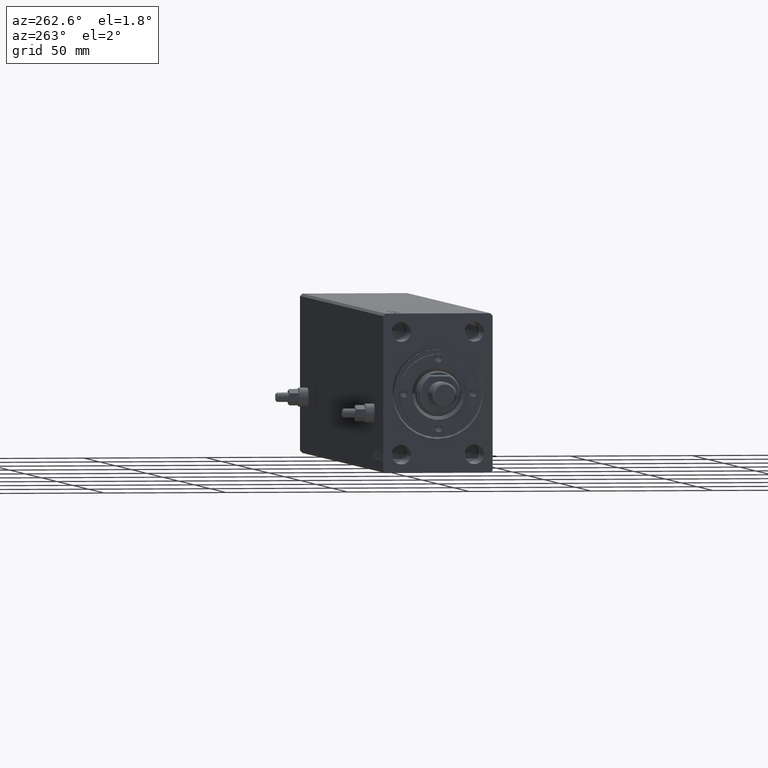
[diagram: clean part render]
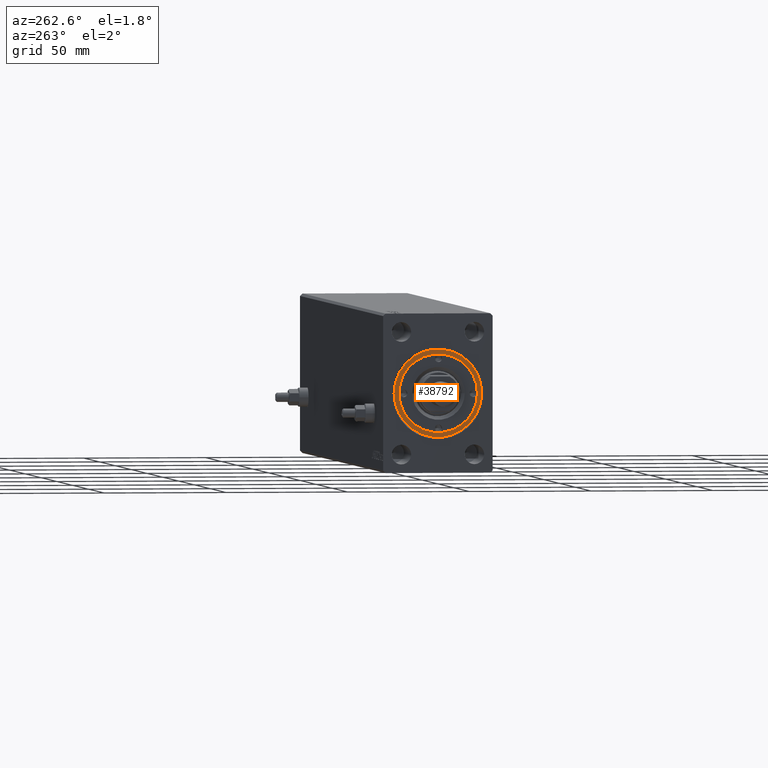
[diagram: same view with one face highlighted and labeled with its STEP entity id]
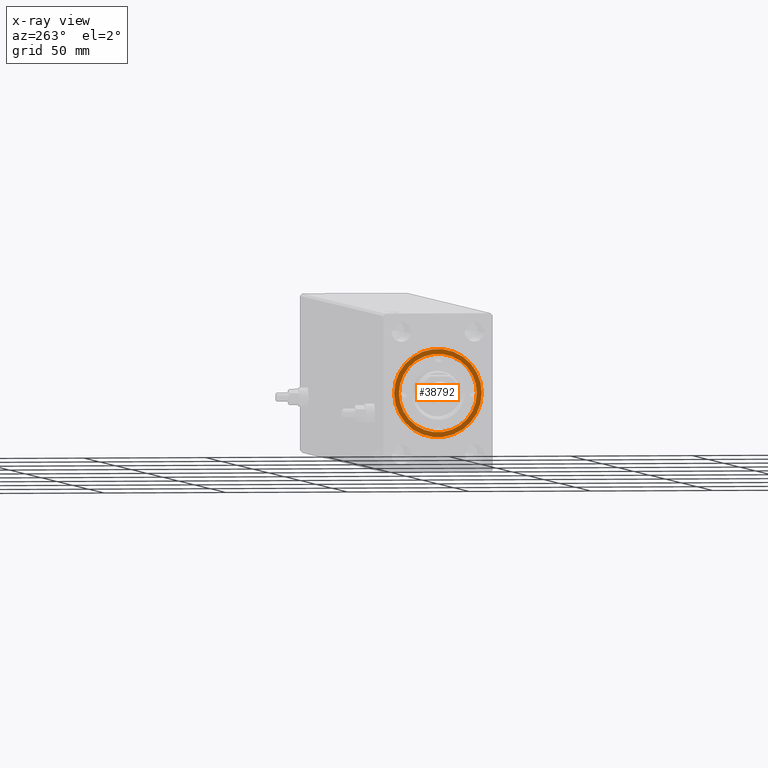
[diagram: x-ray of the same camera — body ghosted, the highlighted face saturated]
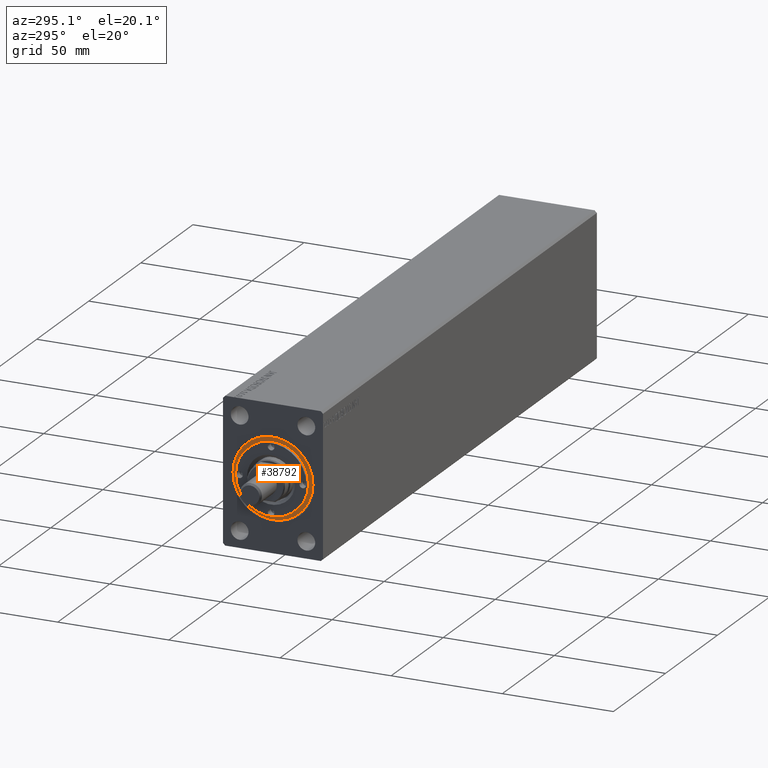
[diagram: same view with one face highlighted and labeled with its STEP entity id]
A machine part, auxiliary view. The second image highlights one B-rep face of the part: STEP entity #38792.
The next image is the same camera in x-ray: the body ghosted, the highlighted face saturated — about 0% of this face is hidden behind the body in this view.
A second angle (auxiliary view) of the same face is appended — the face is thin or edge-on in the first view.
In plain terms, the highlighted planar face has unit normal (-1, 0, 0).
Its self-contained STEP definition (entity closure, byte-faithful):
#374 = DIRECTION ( 'NONE',  ( 1.000000000000000000, 0.000000000000000000, 0.000000000000000000 ) ) ;
#688 = DIRECTION ( 'NONE',  ( 0.000000000000000000, 0.000000000000000000, 1.000000000000000000 ) ) ;
#1550 = CARTESIAN_POINT ( 'NONE',  ( -16.00000000000000000, 0.000000000000000000, 5.200000000000000178 ) ) ;
#1746 = VERTEX_POINT ( 'NONE', #26856 ) ;
#3210 = CARTESIAN_POINT ( 'NONE',  ( 0.000000000000000000, 0.000000000000000000, 5.200000000000000178 ) ) ;
#4890 = CARTESIAN_POINT ( 'NONE',  ( 0.000000000000000000, 0.000000000000000000, 5.200000000000000178 ) ) ;
#6822 = AXIS2_PLACEMENT_3D ( 'NONE', #3210, #28470, #21353 ) ;
#8118 = DIRECTION ( 'NONE',  ( 1.000000000000000000, 0.000000000000000000, -0.000000000000000000 ) ) ;
#8477 = CIRCLE ( 'NONE', #39356, 16.00000000000000000 ) ;
#10478 = DIRECTION ( 'NONE',  ( 0.000000000000000000, 0.000000000000000000, 1.000000000000000000 ) ) ;
#10603 = EDGE_LOOP ( 'NONE', ( #33653, #15456 ) ) ;
#11747 = CARTESIAN_POINT ( 'NONE',  ( -18.00000000000000000, 0.000000000000000000, 5.200000000000000178 ) ) ;
#12023 = FACE_BOUND ( 'NONE', #10603, .T. ) ;
#13521 = AXIS2_PLACEMENT_3D ( 'NONE', #18240, #39821, #8118 ) ;
#14692 = DIRECTION ( 'NONE',  ( 1.000000000000000000, 0.000000000000000000, 0.000000000000000000 ) ) ;
#15390 = VERTEX_POINT ( 'NONE', #40596 ) ;
#15456 = ORIENTED_EDGE ( 'NONE', *, *, #30884, .F. ) ;
#17340 = EDGE_CURVE ( 'NONE', #43253, #15390, #8477, .T. ) ;
#18240 = CARTESIAN_POINT ( 'NONE',  ( 0.000000000000000000, 0.000000000000000000, 5.200000000000000178 ) ) ;
#18281 = VERTEX_POINT ( 'NONE', #11747 ) ;
#19757 = EDGE_LOOP ( 'NONE', ( #37107, #40792 ) ) ;
#21353 = DIRECTION ( 'NONE',  ( 1.000000000000000000, 0.000000000000000000, 0.000000000000000000 ) ) ;
#21690 = PLANE ( 'NONE',  #13521 ) ;
#22377 = AXIS2_PLACEMENT_3D ( 'NONE', #32053, #31824, #38731 ) ;
#22943 = CIRCLE ( 'NONE', #42019, 16.00000000000000000 ) ;
#26651 = CIRCLE ( 'NONE', #6822, 18.00000000000000000 ) ;
#26856 = CARTESIAN_POINT ( 'NONE',  ( 18.00000000000000000, 2.204364238465235428E-15, 5.200000000000000178 ) ) ;
#28470 = DIRECTION ( 'NONE',  ( 0.000000000000000000, 0.000000000000000000, 1.000000000000000000 ) ) ;
#30884 = EDGE_CURVE ( 'NONE', #15390, #43253, #22943, .T. ) ;
#31824 = DIRECTION ( 'NONE',  ( 0.000000000000000000, 0.000000000000000000, 1.000000000000000000 ) ) ;
#31896 = EDGE_CURVE ( 'NONE', #1746, #18281, #26651, .T. ) ;
#32053 = CARTESIAN_POINT ( 'NONE',  ( 0.000000000000000000, 0.000000000000000000, 5.200000000000000178 ) ) ;
#33653 = ORIENTED_EDGE ( 'NONE', *, *, #17340, .F. ) ;
#37107 = ORIENTED_EDGE ( 'NONE', *, *, #40707, .T. ) ;
#38731 = DIRECTION ( 'NONE',  ( 1.000000000000000000, 0.000000000000000000, 0.000000000000000000 ) ) ;
#38792 = ADVANCED_FACE ( 'NONE', ( #12023, #42816 ), #21690, .T. ) ;
#39356 = AXIS2_PLACEMENT_3D ( 'NONE', #4890, #10478, #374 ) ;
#39821 = DIRECTION ( 'NONE',  ( 0.000000000000000000, 0.000000000000000000, 1.000000000000000000 ) ) ;
#40596 = CARTESIAN_POINT ( 'NONE',  ( 16.00000000000000000, 1.959434878635765131E-15, 5.200000000000000178 ) ) ;
#40707 = EDGE_CURVE ( 'NONE', #18281, #1746, #42909, .T. ) ;
#40792 = ORIENTED_EDGE ( 'NONE', *, *, #31896, .T. ) ;
#42019 = AXIS2_PLACEMENT_3D ( 'NONE', #42958, #688, #14692 ) ;
#42816 = FACE_OUTER_BOUND ( 'NONE', #19757, .T. ) ;
#42909 = CIRCLE ( 'NONE', #22377, 18.00000000000000000 ) ;
#42958 = CARTESIAN_POINT ( 'NONE',  ( 0.000000000000000000, 0.000000000000000000, 5.200000000000000178 ) ) ;
#43253 = VERTEX_POINT ( 'NONE', #1550 ) ;